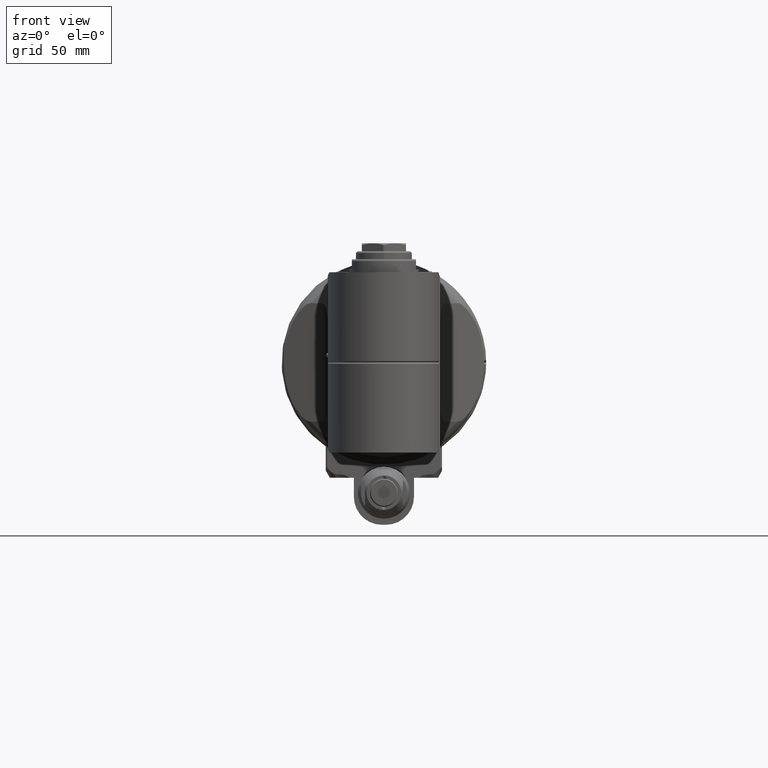
[diagram: clean part render]
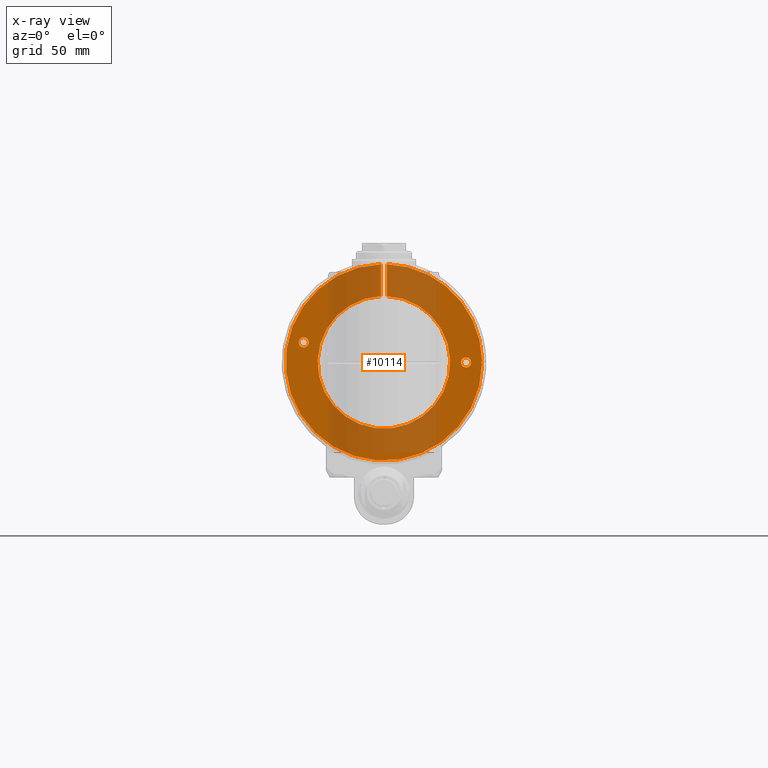
[diagram: x-ray — body ghosted, one internal face saturated and labeled with its STEP entity id]
A machine part, front view, then the same camera in x-ray: the body is ghosted and one INTERNAL B-rep face — a face not visible from any outside direction — is saturated and labeled: STEP entity #10114.
In plain terms, the highlighted planar face has unit normal (0, -1, 0).
Its self-contained STEP definition (entity closure, byte-faithful):
#620=LINE('',#18098,#1263);
#623=LINE('',#18134,#1266);
#624=LINE('',#18139,#1267);
#625=LINE('',#18140,#1268);
#1263=VECTOR('',#12806,15.93371385814);
#1266=VECTOR('',#12821,15.93371385813);
#1267=VECTOR('',#12826,0.658925954023283);
#1268=VECTOR('',#12827,0.658925954023283);
#1884=FACE_BOUND('',#2982,.T.);
#1885=FACE_BOUND('',#2983,.T.);
#2011=PLANE('',#10969);
#2361=FACE_OUTER_BOUND('',#2981,.T.);
#2981=EDGE_LOOP('',(#7622,#7623,#7624,#7625,#7626,#7627,#7628));
#2982=EDGE_LOOP('',(#7629));
#2983=EDGE_LOOP('',(#7630));
#3691=CIRCLE('',#10970,49.);
#3692=CIRCLE('',#10971,33.07735026919);
#3693=CIRCLE('',#10972,49.);
#3694=CIRCLE('',#10973,2.5);
#3695=CIRCLE('',#10974,2.5);
#4491=VERTEX_POINT('',#18096);
#4492=VERTEX_POINT('',#18097);
#4498=VERTEX_POINT('',#18130);
#4499=VERTEX_POINT('',#18131);
#4500=VERTEX_POINT('',#18133);
#4501=VERTEX_POINT('',#18136);
#4502=VERTEX_POINT('',#18138);
#4503=VERTEX_POINT('',#18141);
#4504=VERTEX_POINT('',#18143);
#5681=EDGE_CURVE('',#4491,#4492,#620,.T.);
#5691=EDGE_CURVE('',#4498,#4499,#3691,.T.);
#5692=EDGE_CURVE('',#4499,#4500,#623,.T.);
#5693=EDGE_CURVE('',#4500,#4491,#3692,.T.);
#5694=EDGE_CURVE('',#4492,#4501,#3693,.T.);
#5695=EDGE_CURVE('',#4501,#4502,#624,.T.);
#5696=EDGE_CURVE('',#4502,#4498,#625,.T.);
#5697=EDGE_CURVE('',#4503,#4503,#3694,.T.);
#5698=EDGE_CURVE('',#4504,#4504,#3695,.T.);
#7622=ORIENTED_EDGE('',*,*,#5691,.T.);
#7623=ORIENTED_EDGE('',*,*,#5692,.T.);
#7624=ORIENTED_EDGE('',*,*,#5693,.T.);
#7625=ORIENTED_EDGE('',*,*,#5681,.T.);
#7626=ORIENTED_EDGE('',*,*,#5694,.T.);
#7627=ORIENTED_EDGE('',*,*,#5695,.T.);
#7628=ORIENTED_EDGE('',*,*,#5696,.T.);
#7629=ORIENTED_EDGE('',*,*,#5697,.T.);
#7630=ORIENTED_EDGE('',*,*,#5698,.T.);
#10114=ADVANCED_FACE('',(#2361,#1884,#1885),#2011,.T.);
#10969=AXIS2_PLACEMENT_3D('',#18129,#12817,#12818);
#10970=AXIS2_PLACEMENT_3D('',#18132,#12819,#12820);
#10971=AXIS2_PLACEMENT_3D('',#18135,#12822,#12823);
#10972=AXIS2_PLACEMENT_3D('',#18137,#12824,#12825);
#10973=AXIS2_PLACEMENT_3D('',#18142,#12828,#12829);
#10974=AXIS2_PLACEMENT_3D('',#18144,#12830,#12831);
#12806=DIRECTION('',(0.,0.,1.));
#12817=DIRECTION('center_axis',(0.,-1.,0.));
#12818=DIRECTION('ref_axis',(0.,0.,1.));
#12819=DIRECTION('center_axis',(0.,-1.,0.));
#12820=DIRECTION('ref_axis',(0.99996124901896,0.,0.00880343458216564));
#12821=DIRECTION('',(-5.896537023224E-13,0.,-1.));
#12822=DIRECTION('center_axis',(0.,1.,0.));
#12823=DIRECTION('ref_axis',(0.0453482515314194,0.,0.998971238866787));
#12824=DIRECTION('center_axis',(0.,-1.,0.));
#12825=DIRECTION('ref_axis',(-0.0306122448979601,0.,0.999531335407904));
#12826=DIRECTION('',(-0.75592894601842,0.,0.654653670708017));
#12827=DIRECTION('',(0.75592894601842,0.,0.654653670708017));
#12828=DIRECTION('center_axis',(0.,1.,0.));
#12829=DIRECTION('ref_axis',(-1.,0.,0.));
#12830=DIRECTION('center_axis',(0.,1.,0.));
#12831=DIRECTION('ref_axis',(-1.,0.,0.));
#18096=CARTESIAN_POINT('',(-1.5,1.657933050107E-14,33.04332157684));
#18097=CARTESIAN_POINT('',(-1.5,0.,48.97703543499));
#18098=CARTESIAN_POINT('',(-1.5,1.657933050107E-14,33.04332157684));
#18129=CARTESIAN_POINT('Origin',(0.,0.,49.13074005203));
#18130=CARTESIAN_POINT('',(48.99810120193,-1.42108547152E-14,0.4313682945261));
#18131=CARTESIAN_POINT('',(1.5,3.552713678801E-14,48.97703543499));
#18132=CARTESIAN_POINT('Origin',(0.,3.552713678801E-14,0.));
#18133=CARTESIAN_POINT('',(1.499999999991,0.,33.04332157686));
#18134=CARTESIAN_POINT('',(1.5,0.,48.97703543499));
#18135=CARTESIAN_POINT('Origin',(0.,-9.237055564881E-14,0.));
#18136=CARTESIAN_POINT('',(48.99810120193,0.,-0.4313682945262));
#18137=CARTESIAN_POINT('Origin',(0.,-5.684341886081E-14,0.));
#18138=CARTESIAN_POINT('',(48.5,-1.42108547152E-14,-1.845657092209E-14));
#18139=CARTESIAN_POINT('',(48.99810120193,0.,-0.4313682945262));
#18140=CARTESIAN_POINT('',(48.5,-1.42108547152E-14,-1.845657092209E-14));
#18141=CARTESIAN_POINT('',(-37.5,0.,10.));
#18142=CARTESIAN_POINT('Origin',(-40.,0.,10.));
#18143=CARTESIAN_POINT('',(43.5,0.,0.));
#18144=CARTESIAN_POINT('Origin',(41.,0.,0.));